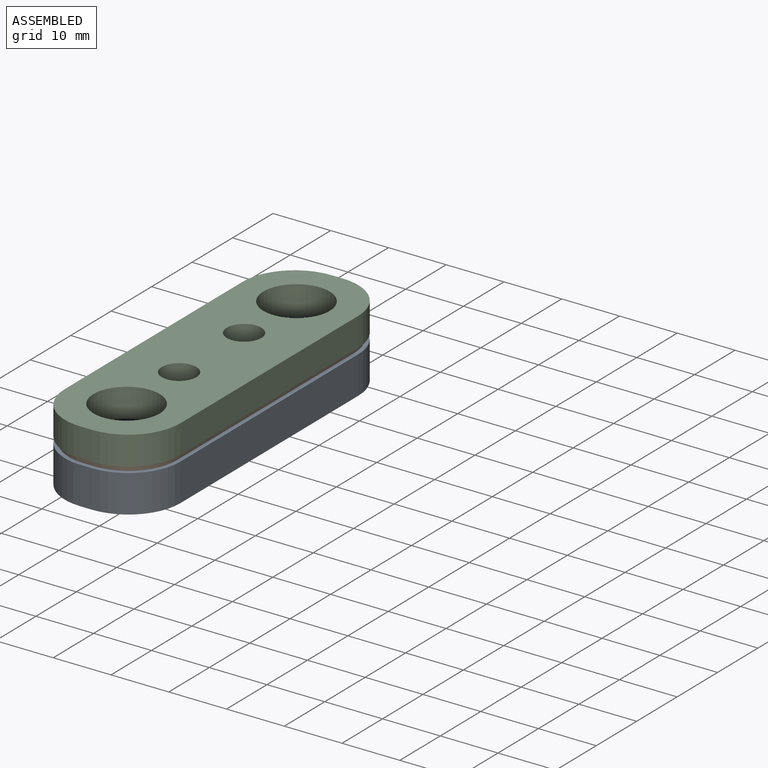
[diagram: assembled view]
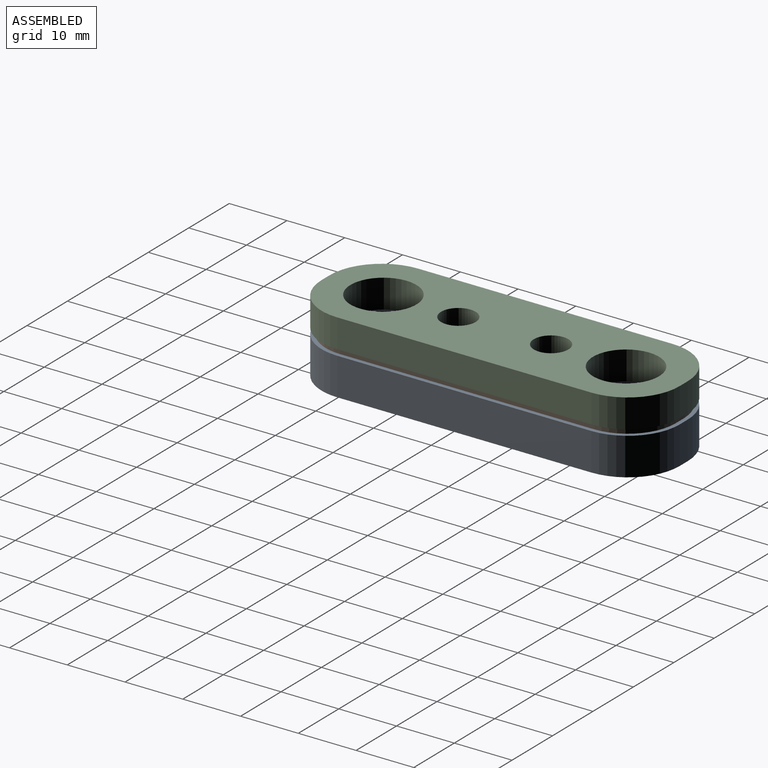
[diagram: assembled view, second angle]
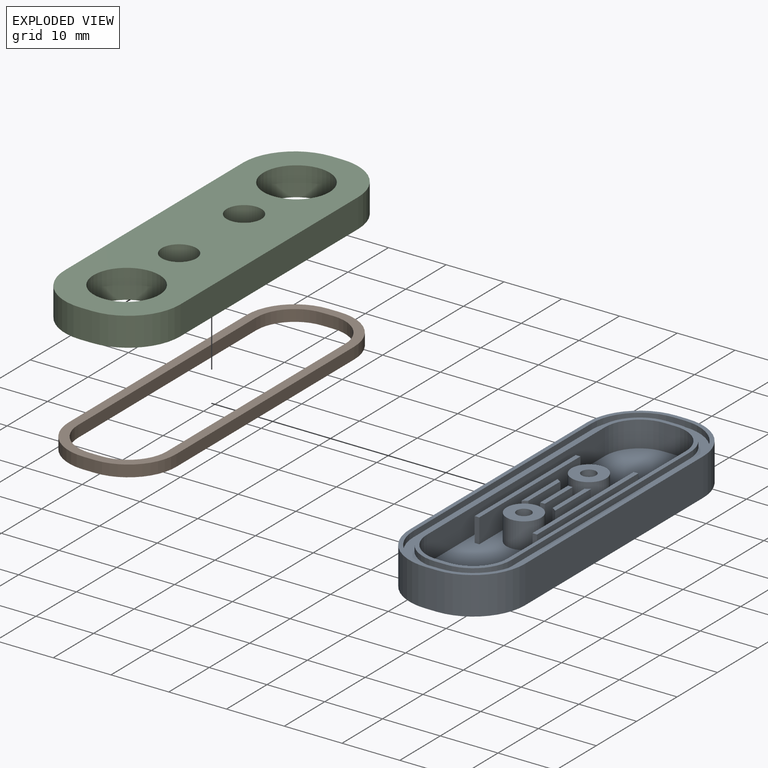
[diagram: exploded view]
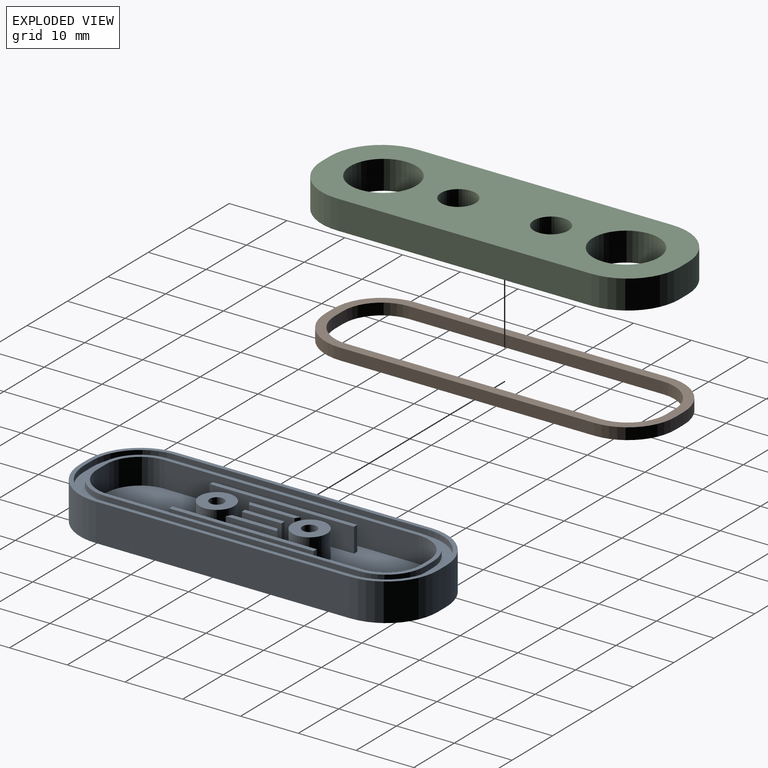
[diagram: exploded view, second angle]
ASSEMBLY  parts=3 mates=4
PART A: 70 faces, bbox 20x62x6.5 mm
  f0: plane 8.92x4.2mm, normal (-1,0,0), area 37.5mm2, adj f1,f23,f64,f65
  f1: plane 56x14mm, normal (0,0,1), area 637.7mm2, adj f0,f2,f3,f4,f5,f6,f8,f9
  f2: plane 7.88x4.2mm, normal (-1,0,0), area 33.1mm2, adj f1,f21,f68,f69
  f3: plane 6.9x4.2mm, normal (1,0,0), area 29mm2, adj f1,f22,f66,f67
  f4: plane 6.9x4.2mm, normal (-1,0,0), area 29mm2, adj f1,f22,f66,f67
  f5: plane 7.88x4.2mm, normal (1,0,0), area 33.1mm2, adj f1,f23,f64,f65
  f6: plane 8.92x4.2mm, normal (1,0,0), area 37.5mm2, adj f1,f21,f68,f69
  f7: plane 57.4x15.4mm, normal (0,0,1), area 92.3mm2, adj f8,f9,f10,f11,f12,f13,f14,f15
  f8: plane 44x4.5mm, normal (-1,0,0), area 198mm2, adj f1,f7,f12,f15
  f9: plane 4.5x2mm, normal (0,-1,0), area 9mm2, adj f1,f7,f12,f13
  f10: plane 44x4.5mm, normal (1,0,0), area 198mm2, adj f1,f7,f13,f14
  f11: plane 4.5x2mm, normal (0,1,0), area 9mm2, adj f1,f7,f14,f15
  f12: cylinder r=6mm len=6mm, axis (0,0,1), area 42.4mm2, adj f1,f7,f8,f9
  f13: cylinder r=6mm len=6mm, axis (0,0,-1), area 42.4mm2, adj f1,f7,f9,f10
  f14: cylinder r=6mm len=6mm, axis (0,0,1), area 42.4mm2, adj f1,f7,f10,f11
  f15: cylinder r=6mm len=6mm, axis (0,0,-1), area 42.4mm2, adj f1,f7,f8,f11
  f16: plane 25x4.2mm, normal (1,0,0), area 105mm2, adj f1,f17,f19,f20
  f17: plane 4.2x0.8mm, normal (0,1,0), area 3.4mm2, adj f1,f16,f18,f20
  f18: plane 25x4.2mm, normal (-1,0,0), area 105mm2, adj f1,f17,f19,f20
  f19: plane 4.2x0.8mm, normal (0,-1,0), area 3.4mm2, adj f1,f16,f18,f20
  f20: plane 25x0.8mm, normal (0,0,1), area 20mm2, adj f16,f17,f18,f19
  f21: plane 8.92x0.8mm, normal (0,0,1), area 6.7mm2, adj f2,f6,f68,f69
  f22: plane 6.9x0.8mm, normal (0,0,1), area 5.5mm2, adj f3,f4,f66,f67
  f23: plane 8.92x0.8mm, normal (0,0,1), area 6.7mm2, adj f0,f5,f64,f65
  f24: plane 4.2x0.8mm, normal (0,-1,0), area 3.4mm2, adj f1,f25,f27,f28
  f25: plane 25x4.2mm, normal (1,0,0), area 105mm2, adj f1,f24,f26,f28
  f26: plane 4.2x0.8mm, normal (0,1,0), area 3.4mm2, adj f1,f25,f27,f28
  f27: plane 25x4.2mm, normal (-1,0,0), area 105mm2, adj f1,f24,f26,f28
  f28: plane 25x0.8mm, normal (0,0,1), area 20mm2, adj f24,f25,f26,f27
  f29: plane 44x1mm, normal (-1,0,0), area 44mm2, adj f30,f44,f45,f55
  f30: cylinder r=8.3mm len=8.3mm, axis (0,0,1), area 13mm2, adj f29,f31,f45,f55
  f31: plane 2x1mm, normal (0,-1,0), area 2mm2, adj f30,f32,f45,f55
  f32: cylinder r=8.3mm len=8.3mm, axis (0,0,1), area 13mm2, adj f31,f33,f45,f55
  f33: plane 44x1mm, normal (1,0,0), area 44mm2, adj f32,f34,f45,f55
  f34: cylinder r=8.3mm len=8.3mm, axis (0,0,1), area 13mm2, adj f33,f35,f45,f55
  f35: plane 2x1mm, normal (0,1,0), area 2mm2, adj f34,f44,f45,f55
  f36: cylinder r=6.7mm len=6.7mm, axis (0,0,1), area 10.5mm2, adj f7,f37,f43,f45
  f37: plane 44x1mm, normal (1,0,0), area 44mm2, adj f7,f36,f38,f45
  f38: cylinder r=6.7mm len=6.7mm, axis (0,0,1), area 10.5mm2, adj f7,f37,f39,f45
  f39: plane 2x1mm, normal (0,-1,0), area 2mm2, adj f7,f38,f40,f45
  f40: cylinder r=6.7mm len=6.7mm, axis (0,0,1), area 10.5mm2, adj f7,f39,f41,f45
  f41: plane 44x1mm, normal (-1,0,0), area 44mm2, adj f7,f40,f42,f45
  f42: cylinder r=6.7mm len=6.7mm, axis (0,0,1), area 10.5mm2, adj f7,f41,f43,f45
  f43: plane 2x1mm, normal (0,1,0), area 2mm2, adj f7,f36,f42,f45
  f44: cylinder r=8.3mm len=8.3mm, axis (0,0,1), area 13mm2, adj f29,f35,f45,f55
  f45: plane 60.6x18.6mm, normal (0,0,1), area 222.6mm2, adj f29,f30,f31,f32,f33,f34,f35,f36
  f46: plane 62x20mm, normal (0,0,-1), area 1170.5mm2, adj f47,f48,f49,f50,f51,f52,f53,f54
  f47: cylinder r=9mm len=9mm, axis (0,0,1), area 91.9mm2, adj f46,f48,f54,f55
  f48: plane 6.5x2mm, normal (0,-1,0), area 13mm2, adj f46,f47,f49,f55
  f49: cylinder r=9mm len=9mm, axis (0,0,-1), area 91.9mm2, adj f46,f48,f50,f55
  f50: plane 44x6.5mm, normal (-1,0,0), area 286mm2, adj f46,f49,f51,f55
  f51: cylinder r=9mm len=9mm, axis (0,0,1), area 91.9mm2, adj f46,f50,f52,f55
  f52: plane 6.5x2mm, normal (0,1,0), area 13mm2, adj f46,f51,f53,f55
  f53: cylinder r=9mm len=9mm, axis (0,0,-1), area 91.9mm2, adj f46,f52,f54,f55
  f54: plane 44x6.5mm, normal (1,0,0), area 286mm2, adj f46,f47,f53,f55
  f55: plane 62x20mm, normal (0,0,1), area 102.4mm2, adj f29,f30,f31,f32,f33,f34,f35,f44
  f56: cylinder r=3mm len=6mm, axis (0,0,1), area 84.8mm2, adj f1,f57
  f57: plane 6x6mm, normal (0,0,1), area 23.4mm2, adj f56,f63
  f58: plane 6x6mm, normal (0,0,1), area 23.4mm2, adj f59,f61
  f59: cylinder r=3mm len=6mm, axis (0,0,1), area 84.8mm2, adj f1,f58
  f60: plane 2.5x2.5mm, normal (0,0,1), area 4.9mm2, adj f61
  f61: cylinder r=1.25mm len=4.5mm, axis (0,0,1), area 35.3mm2, adj f58,f60
  f62: plane 2.5x2.5mm, normal (0,0,1), area 4.9mm2, adj f63
  f63: cylinder r=1.25mm len=4.5mm, axis (0,0,1), area 35.3mm2, adj f57,f62
  f64: cylinder r=4.6mm len=4.2mm, axis (0,0,1), area 4mm2, adj f0,f1,f5,f23
  f65: cylinder r=4.6mm len=4.2mm, axis (0,0,1), area 4mm2, adj f0,f1,f5,f23
  f66: cylinder r=4.6mm len=4.2mm, axis (0,0,1), area 3.4mm2, adj f1,f3,f4,f22
  f67: cylinder r=4.6mm len=4.2mm, axis (0,0,1), area 3.4mm2, adj f1,f3,f4,f22
  f68: cylinder r=4.6mm len=4.2mm, axis (0,0,1), area 4mm2, adj f1,f2,f6,f21
  f69: cylinder r=4.6mm len=4.2mm, axis (0,0,1), area 4mm2, adj f1,f2,f6,f21
PART B: 18 faces, bbox 18.6x60.6x2 mm
  f0: plane 2x2mm, normal (0,1,0), area 4mm2, adj f1,f15,f16,f17
  f1: cylinder r=8.3mm len=8.3mm, axis (0,0,-1), area 26.1mm2, adj f0,f2,f16,f17
  f2: plane 44x2mm, normal (-1,0,0), area 88mm2, adj f1,f3,f16,f17
  f3: cylinder r=8.3mm len=8.3mm, axis (0,0,-1), area 26.1mm2, adj f2,f4,f16,f17
  f4: plane 2x2mm, normal (0,-1,0), area 4mm2, adj f3,f5,f16,f17
  f5: cylinder r=8.3mm len=8.3mm, axis (0,0,-1), area 26.1mm2, adj f4,f6,f16,f17
  f6: plane 44x2mm, normal (1,0,0), area 88mm2, adj f5,f15,f16,f17
  f7: cylinder r=6.7mm len=6.7mm, axis (0,0,-1), area 21mm2, adj f8,f14,f16,f17
  f8: plane 2x2mm, normal (0,-1,0), area 4mm2, adj f7,f9,f16,f17
  f9: cylinder r=6.7mm len=6.7mm, axis (0,0,-1), area 21mm2, adj f8,f10,f16,f17
  f10: plane 44x2mm, normal (-1,0,0), area 88mm2, adj f9,f11,f16,f17
  f11: cylinder r=6.7mm len=6.7mm, axis (0,0,-1), area 21mm2, adj f10,f12,f16,f17
  f12: plane 2x2mm, normal (0,1,0), area 4mm2, adj f11,f13,f16,f17
  f13: cylinder r=6.7mm len=6.7mm, axis (0,0,-1), area 21mm2, adj f12,f14,f16,f17
  f14: plane 44x2mm, normal (1,0,0), area 88mm2, adj f7,f13,f16,f17
  f15: cylinder r=8.3mm len=8.3mm, axis (0,0,-1), area 26.1mm2, adj f0,f6,f16,f17
  f16: plane 60.6x18.6mm, normal (0,0,1), area 222.6mm2, adj f0,f1,f2,f3,f4,f5,f6,f7
  f17: plane 60.6x18.6mm, normal (0,0,-1), area 222.6mm2, adj f0,f1,f2,f3,f4,f5,f6,f7
PART C: 18 faces, bbox 20x62x5 mm
  f0: cylinder r=1.5mm len=3mm, axis (0,0,-1), area 18.8mm2, adj f3,f16
  f1: cylinder r=1.5mm len=3mm, axis (0,0,-1), area 18.8mm2, adj f3,f14
  f2: plane 62x20mm, normal (0,0,1), area 908.2mm2, adj f4,f5,f6,f7,f8,f9,f10,f11
  f3: plane 62x20mm, normal (0,0,-1), area 950.6mm2, adj f0,f1,f4,f5,f6,f7,f8,f9
  f4: plane 44x5mm, normal (1,0,0), area 220mm2, adj f2,f3,f8,f11
  f5: plane 5x2mm, normal (0,1,0), area 10mm2, adj f2,f3,f8,f9
  f6: plane 44x5mm, normal (-1,0,0), area 220mm2, adj f2,f3,f9,f10
  f7: plane 5x2mm, normal (0,-1,0), area 10mm2, adj f2,f3,f10,f11
  f8: cylinder r=9mm len=9mm, axis (0,0,1), area 70.7mm2, adj f2,f3,f4,f5
  f9: cylinder r=9mm len=9mm, axis (0,0,-1), area 70.7mm2, adj f2,f3,f5,f6
  f10: cylinder r=9mm len=9mm, axis (0,0,1), area 70.7mm2, adj f2,f3,f6,f7
  f11: cylinder r=9mm len=9mm, axis (0,0,-1), area 70.7mm2, adj f2,f3,f4,f7
  f12: cylinder r=5.72mm len=11.45mm, axis (0,0,1), area 179.8mm2, adj f2,f3
  f13: cylinder r=5.72mm len=11.45mm, axis (0,0,1), area 179.8mm2, adj f2,f3
  f14: plane 6x6mm, normal (0,0,1), area 21.2mm2, adj f1,f15
  f15: cylinder r=3mm len=6mm, axis (0,0,1), area 56.5mm2, adj f2,f14
  f16: plane 6x6mm, normal (0,0,1), area 21.2mm2, adj f0,f17
  f17: cylinder r=3mm len=6mm, axis (0,0,1), area 56.5mm2, adj f2,f16
PLACE A t=(16.24,-17.91,9.17)mm
PLACE B t=(16.24,-17.91,8.17)mm
PLACE C t=(16.24,-17.91,10.17)mm
MATE planar C.f3 <-> B.f16  axis (0,0,-1) through (16.24,3.09,10.17)mm
MATE planar B.f6 <-> A.f29  axis (1,0,0) through (25.54,3.09,9.17)mm
MATE planar B.f4 <-> A.f35  axis (0,-1,0) through (16.24,-27.21,10.17)mm
MATE planar A.f45 <-> B.f17  axis (0,0,1) through (16.24,3.09,8.17)mm
